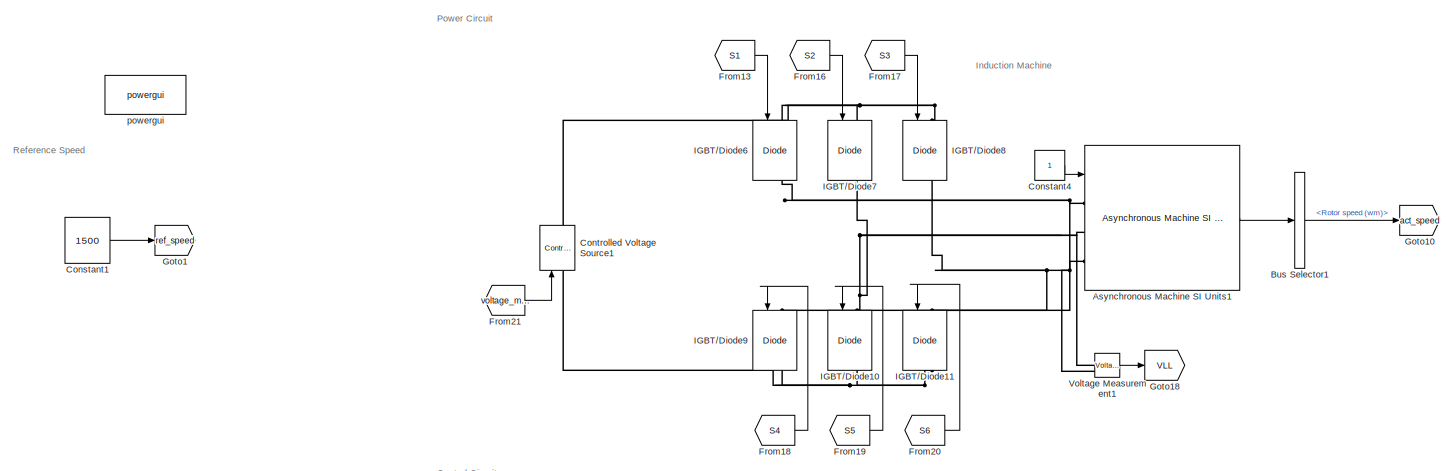
[diagram: root canvas - part 1/3, full width, top band]
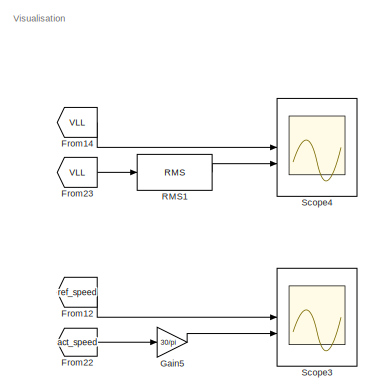
[diagram: root canvas - part 2/3, top right region]
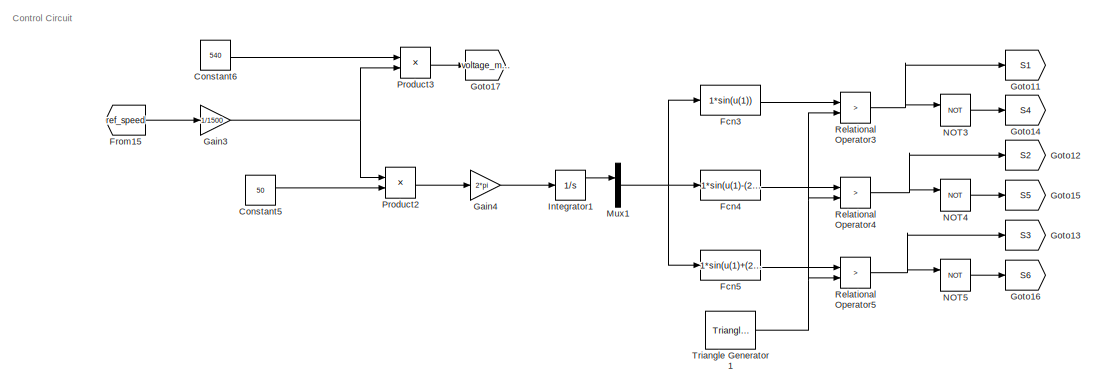
[diagram: root canvas - part 3/3, bottom center region]
MODEL slx_ec792d85b562
KIND model
CONFIG AbsTol = auto
CONFIG EnableMultiTasking = off
CONFIG FixedStep = auto
CONFIG MaxStep = auto
CONFIG MinStep = auto
CONFIG RelTol = 1e-3
CONFIG SampleTimeConstraint = Unconstrained
CONFIG SolverName = VariableStepAuto
CONFIG StartTime = 0.0
CONFIG StopTime = 5
WORKSPACE source: mxarray member
WORKSPACE frequency_needed = 1
BLOCK [Reference] Asynchronous Machine SI Units1  REF=spsAsynchronousMachineSIUnitsLib/Asynchronous Machine
SI Units
  LibrarySourceBlock = sps_lib/Electrical Machines/Asynchronous Machine\nSI Units
  NameLocation = left
  SourceBlock = spsAsynchronousMachineSIUnitsLib/Asynchronous Machine\nSI Units
  SourceType = Asynchronous Machine
BLOCK [BusSelector] Bus Selector1
  OutputSignals = Mechanical.Rotor speed (wm)
BLOCK [Constant] Constant1
  Value = 1500
BLOCK [Constant] Constant4
BLOCK [Constant] Constant5
  Value = 50
BLOCK [Constant] Constant6
  Value = 540
BLOCK [Reference] Controlled Voltage Source1  REF=spsControlledVoltageSourceLib/Controlled Voltage Source
  LibrarySourceBlock = sps_lib/Sources/Controlled Voltage Source
  SourceBlock = spsControlledVoltageSourceLib/Controlled Voltage Source
  SourceType = Controlled Voltage Source
BLOCK [Fcn] Fcn3
  Expr = 1*sin(u(1))
BLOCK [Fcn] Fcn4
  Expr = 1*sin(u(1)-(2*pi/3))
BLOCK [Fcn] Fcn5
  Expr = 1*sin(u(1)+(2*pi/3))
BLOCK [From] From12
  GotoTag = ref_speed
  TagVisibility = global
BLOCK [From] From13
  GotoTag = S1
BLOCK [From] From14
  GotoTag = VLL
BLOCK [From] From15
  GotoTag = ref_speed
  TagVisibility = global
BLOCK [From] From16
  GotoTag = S2
BLOCK [From] From17
  GotoTag = S3
BLOCK [From] From18
  GotoTag = S4
BLOCK [From] From19
  GotoTag = S5
BLOCK [From] From20
  GotoTag = S6
BLOCK [From] From21
  GotoTag = voltage_multiplier
BLOCK [From] From22
  GotoTag = act_speed
BLOCK [From] From23
  GotoTag = VLL
BLOCK [Gain] Gain3
  Gain = 1/1500
BLOCK [Gain] Gain4
  Gain = 2*pi
BLOCK [Gain] Gain5
  Gain = 30/pi
BLOCK [Goto] Goto1
  GotoTag = ref_speed
  TagVisibility = global
BLOCK [Goto] Goto10
  GotoTag = act_speed
BLOCK [Goto] Goto11
  GotoTag = S1
BLOCK [Goto] Goto12
  GotoTag = S2
BLOCK [Goto] Goto13
  GotoTag = S3
BLOCK [Goto] Goto14
  GotoTag = S4
BLOCK [Goto] Goto15
  GotoTag = S5
BLOCK [Goto] Goto16
  GotoTag = S6
BLOCK [Goto] Goto17
  GotoTag = voltage_multiplier
BLOCK [Goto] Goto18
  GotoTag = VLL
BLOCK [Reference] IGBT//Diode10  REF=spsIGBTDiodeLib/IGBT//Diode
  LibrarySourceBlock = sps_lib/Power Electronics/IGBT//Diode
  NameLocation = left
  SourceBlock = spsIGBTDiodeLib/IGBT//Diode
  SourceType = IGBT/Diode
BLOCK [Reference] IGBT//Diode11  REF=spsIGBTDiodeLib/IGBT//Diode
  LibrarySourceBlock = sps_lib/Power Electronics/IGBT//Diode
  NameLocation = left
  SourceBlock = spsIGBTDiodeLib/IGBT//Diode
  SourceType = IGBT/Diode
BLOCK [Reference] IGBT//Diode6  REF=spsIGBTDiodeLib/IGBT//Diode
  LibrarySourceBlock = sps_lib/Power Electronics/IGBT//Diode
  NameLocation = left
  SourceBlock = spsIGBTDiodeLib/IGBT//Diode
  SourceType = IGBT/Diode
BLOCK [Reference] IGBT//Diode7  REF=spsIGBTDiodeLib/IGBT//Diode
  LibrarySourceBlock = sps_lib/Power Electronics/IGBT//Diode
  NameLocation = left
  SourceBlock = spsIGBTDiodeLib/IGBT//Diode
  SourceType = IGBT/Diode
BLOCK [Reference] IGBT//Diode8  REF=spsIGBTDiodeLib/IGBT//Diode
  LibrarySourceBlock = sps_lib/Power Electronics/IGBT//Diode
  NameLocation = left
  SourceBlock = spsIGBTDiodeLib/IGBT//Diode
  SourceType = IGBT/Diode
BLOCK [Reference] IGBT//Diode9  REF=spsIGBTDiodeLib/IGBT//Diode
  LibrarySourceBlock = sps_lib/Power Electronics/IGBT//Diode
  NameLocation = left
  SourceBlock = spsIGBTDiodeLib/IGBT//Diode
  SourceType = IGBT/Diode
BLOCK [Integrator] Integrator1
BLOCK [Mux] Mux1
  DisplayOption = bar
  Inputs = 1
BLOCK [Logic] NOT3
  AllPortsSameDT = off
  IconShape = distinctive
  Operator = NOT
  OutDataTypeStr = boolean
BLOCK [Logic] NOT4
  AllPortsSameDT = off
  IconShape = distinctive
  Operator = NOT
  OutDataTypeStr = boolean
BLOCK [Logic] NOT5
  AllPortsSameDT = off
  IconShape = distinctive
  Operator = NOT
  OutDataTypeStr = boolean
BLOCK [Product] Product2
BLOCK [Product] Product3
BLOCK [Reference] RMS1  REF=dspstat3/RMS
  SourceBlock = dspstat3/RMS
  SourceType = RMS
  UserDataPersistent = on
BLOCK [RelationalOperator] Relational Operator3
  InputSameDT = off
  Operator = >
  OutDataTypeStr = boolean
  RndMeth = Simplest
BLOCK [RelationalOperator] Relational Operator4
  InputSameDT = off
  Operator = >
  OutDataTypeStr = boolean
  RndMeth = Simplest
BLOCK [RelationalOperator] Relational Operator5
  InputSameDT = off
  Operator = >
  OutDataTypeStr = boolean
  RndMeth = Simplest
BLOCK [Scope] Scope3
  Floating = off
  NumInputPorts = 2
  ScopeSpecificationString = Simulink.scopes.TimeScopeBlockCfg('CurrentConfiguration', extmgr.ConfigurationSet(extmgr.Configuration('Core','General UI',true),extmgr.Configuration('Core','Source UI',true),extmgr.Configuration('Sources','WiredSimulink',true,'DataLoggingVariableName','ScopeData2'),extmgr.Configuration('Visuals','Time Domain',true,'SerializedDisplays',{struct('MinYLimReal','656.25','MaxYLimReal','1593.75','YLabel...<+2225ch>
BLOCK [Scope] Scope4
  Floating = off
  NumInputPorts = 2
  ScopeSpecificationString = Simulink.scopes.TimeScopeBlockCfg('CurrentConfiguration', extmgr.ConfigurationSet(extmgr.Configuration('Core','General UI',true),extmgr.Configuration('Core','Source UI',true),extmgr.Configuration('Sources','WiredSimulink',true,'DataLoggingVariableName','ScopeData3'),extmgr.Configuration('Visuals','Time Domain',true,'SerializedDisplays',{struct('MinYLimReal','-675.10828','MaxYLimReal','675.13501','...<+2245ch>
BLOCK [Reference] Triangle Generator1  REF=spsTriangleGeneratorLib/Triangle
Generator
  LibrarySourceBlock = sps_lib/Sources/Signal Generator Sources/Triangle\nGenerator
  SourceBlock = spsTriangleGeneratorLib/Triangle\nGenerator
  SourceType = Triangle Generator
BLOCK [Reference] Voltage Measurement1  REF=spsVoltageMeasurementLib/Voltage Measurement
  LibrarySourceBlock = sps_lib/Sensors and Measurements/Voltage Measurement
  SourceBlock = spsVoltageMeasurementLib/Voltage Measurement
  SourceType = Voltage Measurement
  UserDataPersistent = on
BLOCK [Reference] powergui  REF=sps_lib/powergui
  LibrarySourceBlock = sps_lib/powergui
  Priority = 1
  SourceBlock = sps_lib/powergui
  SourceType = PSB option menu block
ANNOTATION (root): Control Circuit
ANNOTATION (root): Induction Machine
ANNOTATION (root): Power Circuit
ANNOTATION (root): Reference Speed
ANNOTATION (root): Visualisation
LINE Asynchronous Machine SI Units1:1 -> Bus Selector1:1
LINE Bus Selector1:1 -> Goto10:1
LINE Constant1:1 -> Goto1:1
LINE Constant4:1 -> Asynchronous Machine SI Units1:1
LINE Constant5:1 -> Product2:2
LINE Constant6:1 -> Product3:1
LINE Fcn3:1 -> Relational Operator3:1
LINE Fcn4:1 -> Relational Operator4:1
LINE Fcn5:1 -> Relational Operator5:1
LINE From12:1 -> Scope3:1
LINE From13:1 -> IGBT//Diode6:1
LINE From14:1 -> Scope4:1
LINE From15:1 -> Gain3:1
LINE From16:1 -> IGBT//Diode7:1
LINE From17:1 -> IGBT//Diode8:1
LINE From18:1 -> IGBT//Diode9:1
LINE From19:1 -> IGBT//Diode10:1
LINE From20:1 -> IGBT//Diode11:1
LINE From21:1 -> Controlled Voltage Source1:1
LINE From22:1 -> Gain5:1
LINE From23:1 -> RMS1:1
NET Gain3:1 -> Product2:1, Product3:2
LINE Gain4:1 -> Integrator1:1
LINE Gain5:1 -> Scope3:2
LINE Integrator1:1 -> Mux1:1
NET Mux1:1 -> Fcn3:1, Fcn4:1, Fcn5:1
LINE NOT3:1 -> Goto14:1
LINE NOT4:1 -> Goto15:1
LINE NOT5:1 -> Goto16:1
LINE Product2:1 -> Gain4:1
LINE Product3:1 -> Goto17:1
LINE RMS1:1 -> Scope4:2
NET Relational Operator3:1 -> Goto11:1, NOT3:1
NET Relational Operator4:1 -> Goto12:1, NOT4:1
NET Relational Operator5:1 -> Goto13:1, NOT5:1
NET Triangle Generator1:1 -> Relational Operator3:2, Relational Operator4:2, Relational Operator5:2
LINE Voltage Measurement1:1 -> Goto18:1
PNET net1: Asynchronous Machine SI Units1:LConn1 -- IGBT//Diode6:RConn1 -- IGBT//Diode9:LConn1
PNET net2: Asynchronous Machine SI Units1:LConn2 -- IGBT//Diode10:LConn1 -- IGBT//Diode7:RConn1 -- Voltage Measurement1:LConn1
PNET net3: Asynchronous Machine SI Units1:LConn3 -- IGBT//Diode11:LConn1 -- IGBT//Diode8:RConn1 -- Voltage Measurement1:LConn2
PNET net4: Controlled Voltage Source1:LConn1 -- IGBT//Diode10:RConn1 -- IGBT//Diode11:RConn1 -- IGBT//Diode9:RConn1
PNET net5: Controlled Voltage Source1:RConn1 -- IGBT//Diode6:LConn1 -- IGBT//Diode7:LConn1 -- IGBT//Diode8:LConn1
note: NET lines group one-source signal fan-out (src -> all destinations, sorted); 1:1 wires keep LINE; PNET lines group multi-terminal physical nets as a canonical sorted terminal list (undirected conserving connections); 2-terminal nets keep the pairwise PLINE form
